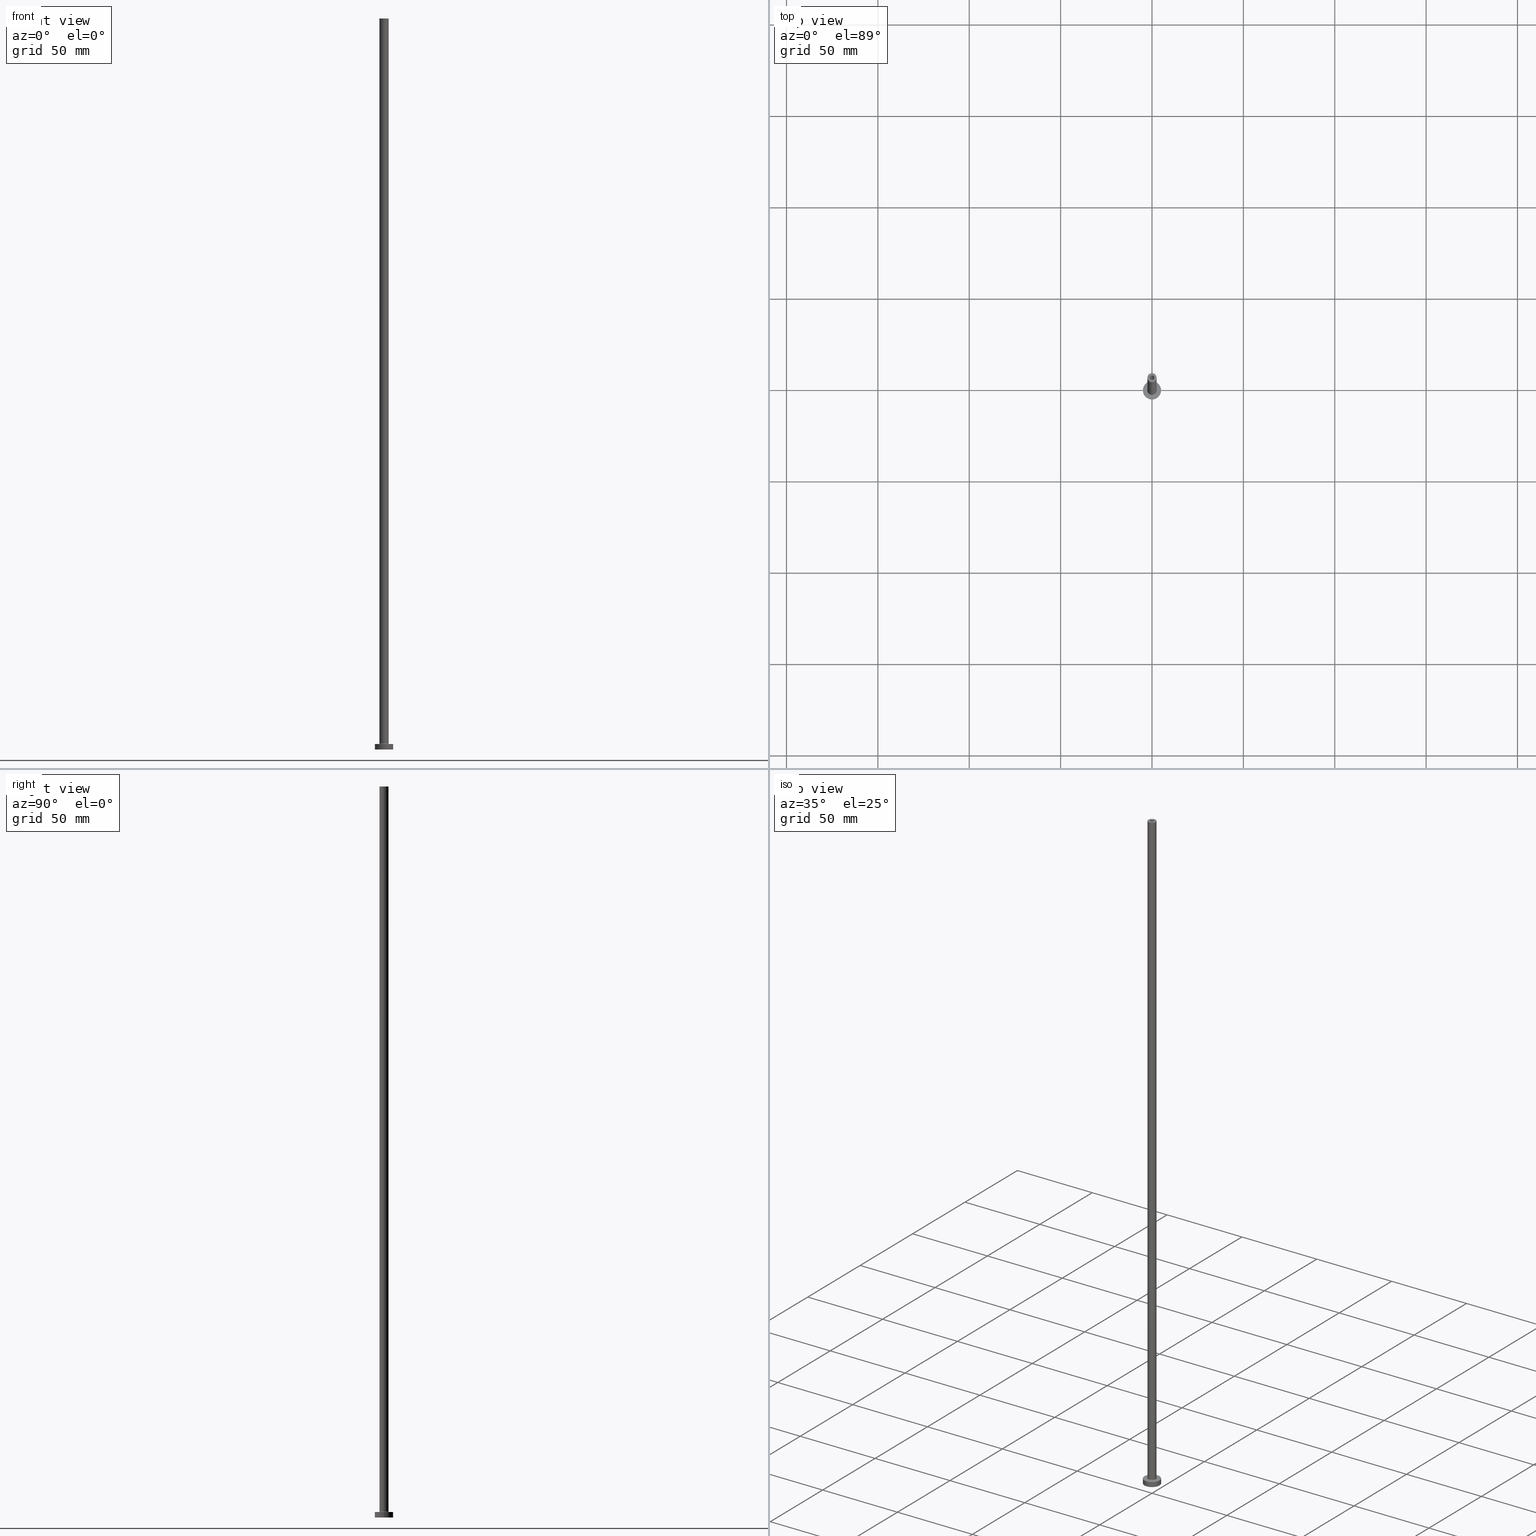
[diagram: canonical four-view strip — front | top / right | iso, engineering-drawing reading convention]
A machine part, canonical four-view strip (front | top / right | iso — engineering-drawing reading convention). The complete STEP part file that produces these views, byte-faithful:
ISO-10303-21;
HEADER;
FILE_DESCRIPTION (( 'STEP AP203' ),
    '1' );
FILE_NAME ('7e1b.STEP',
    '2023-02-13T18:03:59',
    ( '' ),
    ( '' ),
    'SwSTEP 2.0',
    'SolidWorks 2019',
    '' );
FILE_SCHEMA (( 'CONFIG_CONTROL_DESIGN' ));
ENDSEC;

DATA;
#1 = AXIS2_PLACEMENT_3D ( 'NONE', #91, #68, #455 ) ;
#2 = DIRECTION ( 'NONE',  ( 1.000000000000000000, 0.000000000000000000, 0.000000000000000000 ) ) ;
#3 = CALENDAR_DATE ( 2023, 13, 2 ) ;
#4 = VERTEX_POINT ( 'NONE', #315 ) ;
#5 = ADVANCED_FACE ( 'NONE', ( #217 ), #76, .F. ) ;
#6 = CALENDAR_DATE ( 2023, 13, 2 ) ;
#7 = ORIENTED_EDGE ( 'NONE', *, *, #426, .F. ) ;
#8 = CARTESIAN_POINT ( 'NONE',  ( 0.000000000000000000, 0.000000000000000000, 368.9597979746446299 ) ) ;
#9 = CARTESIAN_POINT ( 'NONE',  ( 0.000000000000000000, 0.000000000000000000, 400.0000000000000000 ) ) ;
#10 = CARTESIAN_POINT ( 'NONE',  ( -2.500000000000000000, 0.000000000000000000, 400.0000000000000000 ) ) ;
#11 = CALENDAR_DATE ( 2023, 13, 2 ) ;
#12 = CC_DESIGN_PERSON_AND_ORGANIZATION_ASSIGNMENT ( #152, #289, ( #97 ) ) ;
#13 = CARTESIAN_POINT ( 'NONE',  ( 2.500000000000000000, 3.061616997868383141E-16, 400.0000000000000000 ) ) ;
#14 = CALENDAR_DATE ( 2023, 13, 2 ) ;
#15 = DIRECTION ( 'NONE',  ( -1.000000000000000000, 0.000000000000000000, 0.000000000000000000 ) ) ;
#16 = LOCAL_TIME ( 19, 3, 59.00000000000000000, #188 ) ;
#17 = TOROIDAL_SURFACE ( 'NONE', #88, 2.799999999999999822, 0.2999999999999999889 ) ;
#18 = DATE_AND_TIME ( #443, #285 ) ;
#19 = CARTESIAN_POINT ( 'NONE',  ( 1.250000000000000000, 1.530808498934191571E-16, 365.0000000000000000 ) ) ;
#20 = EDGE_CURVE ( 'NONE', #379, #375, #21, .T. ) ;
#21 = CIRCLE ( 'NONE', #280, 5.000000000000000000 ) ;
#22 = CARTESIAN_POINT ( 'NONE',  ( 0.000000000000000000, 0.000000000000000000, 365.0000000000000000 ) ) ;
#23 = ORIENTED_EDGE ( 'NONE', *, *, #226, .T. ) ;
#24 = CYLINDRICAL_SURFACE ( 'NONE', #1, 1.250000000000000000 ) ;
#25 = ORIENTED_EDGE ( 'NONE', *, *, #350, .F. ) ;
#26 = VECTOR ( 'NONE', #292, 1000.000000000000000 ) ;
#27 = DIRECTION ( 'NONE',  ( 1.000000000000000000, 0.000000000000000000, -0.000000000000000000 ) ) ;
#28 = ORIENTED_EDGE ( 'NONE', *, *, #215, .T. ) ;
#29 = EDGE_CURVE ( 'NONE', #142, #174, #332, .T. ) ;
#30 = DIRECTION ( 'NONE',  ( 1.000000000000000000, 0.000000000000000000, 0.000000000000000000 ) ) ;
#31 = ORIENTED_EDGE ( 'NONE', *, *, #432, .T. ) ;
#32 = DIRECTION ( 'NONE',  ( 1.000000000000000000, 0.000000000000000000, 0.000000000000000000 ) ) ;
#33 = ORIENTED_EDGE ( 'NONE', *, *, #410, .F. ) ;
#34 = DIRECTION ( 'NONE',  ( -0.000000000000000000, -0.000000000000000000, -1.000000000000000000 ) ) ;
#35 = CARTESIAN_POINT ( 'NONE',  ( 0.000000000000000000, 0.000000000000000000, 0.000000000000000000 ) ) ;
#36 = EDGE_CURVE ( 'NONE', #375, #379, #389, .T. ) ;
#37 = ORIENTED_EDGE ( 'NONE', *, *, #41, .F. ) ;
#38 = CARTESIAN_POINT ( 'NONE',  ( 0.000000000000000000, 0.000000000000000000, 3.300000000000025135 ) ) ;
#39 = EDGE_LOOP ( 'NONE', ( #422, #386, #282, #412 ) ) ;
#40 = PERSON_AND_ORGANIZATION ( #262, #86 ) ;
#41 = EDGE_CURVE ( 'NONE', #264, #316, #178, .T. ) ;
#42 = DIRECTION ( 'NONE',  ( 1.224646799147353207E-16, 1.000000000000000000, -0.000000000000000000 ) ) ;
#43 = CLOSED_SHELL ( 'NONE', ( #71, #84, #5, #447, #358, #165, #297, #336, #54, #344, #244, #219, #291, #373 ) ) ;
#44 =( LENGTH_UNIT ( ) NAMED_UNIT ( * ) SI_UNIT ( .MILLI., .METRE. ) );
#45 = CYLINDRICAL_SURFACE ( 'NONE', #74, 5.000000000000000000 ) ;
#46 = APPROVAL_STATUS ( 'not_yet_approved' ) ;
#47 = VECTOR ( 'NONE', #307, 1000.000000000000000 ) ;
#48 = DIRECTION ( 'NONE',  ( 0.000000000000000000, 0.000000000000000000, 1.000000000000000000 ) ) ;
#49 = EDGE_CURVE ( 'NONE', #96, #420, #154, .T. ) ;
#50 = DIRECTION ( 'NONE',  ( 0.000000000000000000, 0.000000000000000000, 1.000000000000000000 ) ) ;
#51 = CARTESIAN_POINT ( 'NONE',  ( 1.399999999999999911, 1.714505518806294391E-16, 368.9597979746446299 ) ) ;
#52 = DIRECTION ( 'NONE',  ( 0.000000000000000000, 0.000000000000000000, -1.000000000000000000 ) ) ;
#53 = APPROVAL_ROLE ( '' ) ;
#54 = ADVANCED_FACE ( 'NONE', ( #284 ), #434, .T. ) ;
#55 = CARTESIAN_POINT ( 'NONE',  ( 0.000000000000000000, 0.000000000000000000, 0.000000000000000000 ) ) ;
#56 = AXIS2_PLACEMENT_3D ( 'NONE', #22, #98, #416 ) ;
#57 = FACE_BOUND ( 'NONE', #342, .T. ) ;
#58 = ORIENTED_EDGE ( 'NONE', *, *, #426, .T. ) ;
#59 = AXIS2_PLACEMENT_3D ( 'NONE', #113, #251, #249 ) ;
#60 = PLANE ( 'NONE',  #138 ) ;
#61 = ORIENTED_EDGE ( 'NONE', *, *, #118, .F. ) ;
#62 = CARTESIAN_POINT ( 'NONE',  ( 0.000000000000000000, 0.000000000000000000, 400.0000000000000000 ) ) ;
#63 = ORIENTED_EDGE ( 'NONE', *, *, #380, .F. ) ;
#64 = APPROVAL_PERSON_ORGANIZATION ( #82, #204, #79 ) ;
#65 = EDGE_CURVE ( 'NONE', #301, #276, #365, .T. ) ;
#66 = LOCAL_TIME ( 19, 3, 59.00000000000000000, #313 ) ;
#67 = CARTESIAN_POINT ( 'NONE',  ( 1.399999999999999911, 1.714505518806294391E-16, 0.000000000000000000 ) ) ;
#68 = DIRECTION ( 'NONE',  ( 0.000000000000000000, 0.000000000000000000, -1.000000000000000000 ) ) ;
#69 = EDGE_LOOP ( 'NONE', ( #203, #391, #348, #147 ) ) ;
#70 = APPLICATION_PROTOCOL_DEFINITION ( 'international standard', 'config_control_design', 1994, #360 ) ;
#71 = ADVANCED_FACE ( 'NONE', ( #158 ), #83, .F. ) ;
#72 = DIRECTION ( 'NONE',  ( -0.000000000000000000, -0.000000000000000000, -1.000000000000000000 ) ) ;
#73 = AXIS2_PLACEMENT_3D ( 'NONE', #191, #34, #311 ) ;
#74 = AXIS2_PLACEMENT_3D ( 'NONE', #293, #199, #15 ) ;
#75 = ORIENTED_EDGE ( 'NONE', *, *, #180, .T. ) ;
#76 = TOROIDAL_SURFACE ( 'NONE', #290, 2.799999999999999822, 0.2999999999999999889 ) ;
#77 = ORIENTED_EDGE ( 'NONE', *, *, #36, .T. ) ;
#78 = CARTESIAN_POINT ( 'NONE',  ( 0.000000000000000000, 0.000000000000000000, 400.0000000000000000 ) ) ;
#79 = APPROVAL_ROLE ( '' ) ;
#80 = EDGE_LOOP ( 'NONE', ( #58, #384, #340, #141 ) ) ;
#81 = DIRECTION ( 'NONE',  ( 1.000000000000000000, 0.000000000000000000, 0.000000000000000000 ) ) ;
#82 = PERSON_AND_ORGANIZATION ( #262, #86 ) ;
#83 = CYLINDRICAL_SURFACE ( 'NONE', #405, 1.250000000000000000 ) ;
#84 = ADVANCED_FACE ( 'NONE', ( #364 ), #222, .F. ) ;
#85 = CARTESIAN_POINT ( 'NONE',  ( 0.000000000000000000, 0.000000000000000000, 0.000000000000000000 ) ) ;
#86 = ORGANIZATION ( 'NEUR�EN�', 'NEUR�EN�', '' ) ;
#87 = CARTESIAN_POINT ( 'NONE',  ( -1.399999999999999911, 0.000000000000000000, 365.0000000000000000 ) ) ;
#88 = AXIS2_PLACEMENT_3D ( 'NONE', #122, #361, #438 ) ;
#89 = CARTESIAN_POINT ( 'NONE',  ( -1.250000000000000000, 0.000000000000000000, 365.0000000000000000 ) ) ;
#90 = CARTESIAN_POINT ( 'NONE',  ( 1.250000000000000000, 1.530808498934191571E-16, 400.0000000000000000 ) ) ;
#91 = CARTESIAN_POINT ( 'NONE',  ( 0.000000000000000000, 0.000000000000000000, 400.0000000000000000 ) ) ;
#92 = VECTOR ( 'NONE', #125, 1000.000000000000000 ) ;
#93 = PERSON_AND_ORGANIZATION_ROLE ( 'classification_officer' ) ;
#94 = PLANE ( 'NONE',  #115 ) ;
#95 = CARTESIAN_POINT ( 'NONE',  ( 0.000000000000000000, 0.000000000000000000, 3.000000000000000000 ) ) ;
#96 = VERTEX_POINT ( 'NONE', #189 ) ;
#97 = PRODUCT_DEFINITION ( 'NEZN�M�', '', #200, #402 ) ;
#98 = DIRECTION ( 'NONE',  ( 0.000000000000000000, 0.000000000000000000, 1.000000000000000000 ) ) ;
#99 = EDGE_LOOP ( 'NONE', ( #134, #61 ) ) ;
#100 = CIRCLE ( 'NONE', #149, 1.399999999999999911 ) ;
#101 = DIRECTION ( 'NONE',  ( 0.000000000000000000, 0.000000000000000000, 1.000000000000000000 ) ) ;
#102 = VERTEX_POINT ( 'NONE', #89 ) ;
#103 = CC_DESIGN_DATE_AND_TIME_ASSIGNMENT ( #354, #250, ( #97 ) ) ;
#104 = MECHANICAL_CONTEXT ( 'NONE', #153, 'mechanical' ) ;
#105 = ORIENTED_EDGE ( 'NONE', *, *, #380, .T. ) ;
#106 = DIRECTION ( 'NONE',  ( -0.000000000000000000, -0.000000000000000000, -1.000000000000000000 ) ) ;
#107 = CIRCLE ( 'NONE', #246, 5.000000000000000000 ) ;
#108 = VERTEX_POINT ( 'NONE', #87 ) ;
#109 = AXIS2_PLACEMENT_3D ( 'NONE', #144, #186, #278 ) ;
#110 = ORIENTED_EDGE ( 'NONE', *, *, #432, .F. ) ;
#111 = EDGE_CURVE ( 'NONE', #274, #312, #176, .T. ) ;
#112 = DIRECTION ( 'NONE',  ( 1.000000000000000000, 0.000000000000000000, 0.000000000000000000 ) ) ;
#113 = CARTESIAN_POINT ( 'NONE',  ( 0.000000000000000000, 0.000000000000000000, 0.000000000000000000 ) ) ;
#114 = APPROVAL_STATUS ( 'not_yet_approved' ) ;
#115 = AXIS2_PLACEMENT_3D ( 'NONE', #261, #101, #341 ) ;
#116 = DIRECTION ( 'NONE',  ( 0.000000000000000000, 0.000000000000000000, 1.000000000000000000 ) ) ;
#117 = DIRECTION ( 'NONE',  ( 0.000000000000000000, 0.000000000000000000, 1.000000000000000000 ) ) ;
#118 = EDGE_CURVE ( 'NONE', #276, #301, #435, .T. ) ;
#119 = DIRECTION ( 'NONE',  ( 1.000000000000000000, 0.000000000000000000, 0.000000000000000000 ) ) ;
#120 = CYLINDRICAL_SURFACE ( 'NONE', #73, 2.500000000000000000 ) ;
#121 = CARTESIAN_POINT ( 'NONE',  ( -1.250000000000000000, 0.000000000000000000, 400.0000000000000000 ) ) ;
#122 = CARTESIAN_POINT ( 'NONE',  ( 0.000000000000000000, 0.000000000000000000, 3.300000000000025135 ) ) ;
#123 = AXIS2_PLACEMENT_3D ( 'NONE', #8, #403, #157 ) ;
#124 = APPROVAL_DATE_TIME ( #439, #241 ) ;
#125 = DIRECTION ( 'NONE',  ( 0.000000000000000000, 0.000000000000000000, -1.000000000000000000 ) ) ;
#126 = DIRECTION ( 'NONE',  ( 1.000000000000000000, 0.000000000000000000, 0.000000000000000000 ) ) ;
#127 = FACE_BOUND ( 'NONE', #382, .T. ) ;
#128 = ORIENTED_EDGE ( 'NONE', *, *, #111, .F. ) ;
#129 = AXIS2_PLACEMENT_3D ( 'NONE', #196, #52, #396 ) ;
#130 = EDGE_CURVE ( 'NONE', #240, #142, #444, .T. ) ;
#131 = DIRECTION ( 'NONE',  ( 1.000000000000000000, 0.000000000000000000, 0.000000000000000000 ) ) ;
#132 = ORIENTED_EDGE ( 'NONE', *, *, #324, .F. ) ;
#133 = CARTESIAN_POINT ( 'NONE',  ( 5.000000000000000000, 6.123233995736766282E-16, 0.000000000000000000 ) ) ;
#134 = ORIENTED_EDGE ( 'NONE', *, *, #65, .F. ) ;
#135 = DIRECTION ( 'NONE',  ( 0.000000000000000000, 0.000000000000000000, 1.000000000000000000 ) ) ;
#136 = ORIENTED_EDGE ( 'NONE', *, *, #226, .F. ) ;
#137 = CC_DESIGN_PERSON_AND_ORGANIZATION_ASSIGNMENT ( #433, #383, ( #175 ) ) ;
#138 = AXIS2_PLACEMENT_3D ( 'NONE', #167, #207, #27 ) ;
#139 = DIRECTION ( 'NONE',  ( -0.000000000000000000, -0.000000000000000000, -1.000000000000000000 ) ) ;
#140 = ORIENTED_EDGE ( 'NONE', *, *, #20, .F. ) ;
#141 = ORIENTED_EDGE ( 'NONE', *, *, #143, .F. ) ;
#142 = VERTEX_POINT ( 'NONE', #252 ) ;
#143 = EDGE_CURVE ( 'NONE', #108, #301, #228, .T. ) ;
#144 = CARTESIAN_POINT ( 'NONE',  ( 2.799999999999999822, 0.000000000000000000, 3.300000000000025135 ) ) ;
#145 = DIRECTION ( 'NONE',  ( 1.000000000000000000, 0.000000000000000000, 0.000000000000000000 ) ) ;
#146 = VERTEX_POINT ( 'NONE', #10 ) ;
#147 = ORIENTED_EDGE ( 'NONE', *, *, #421, .F. ) ;
#148 =( NAMED_UNIT ( * ) PLANE_ANGLE_UNIT ( ) SI_UNIT ( $, .RADIAN. ) );
#149 = AXIS2_PLACEMENT_3D ( 'NONE', #359, #117, #430 ) ;
#150 = VECTOR ( 'NONE', #265, 1000.000000000000000 ) ;
#151 = CARTESIAN_POINT ( 'NONE',  ( 0.000000000000000000, 0.000000000000000000, 3.000000000000000000 ) ) ;
#152 = PERSON_AND_ORGANIZATION ( #262, #86 ) ;
#153 = APPLICATION_CONTEXT ( 'configuration controlled 3d designs of mechanical parts and assemblies' ) ;
#154 = CIRCLE ( 'NONE', #413, 0.2999999999999999334 ) ;
#155 = CARTESIAN_POINT ( 'NONE',  ( 2.799999999999999822, 0.000000000000000000, 3.000000000000012434 ) ) ;
#156 = PERSON_AND_ORGANIZATION ( #262, #86 ) ;
#157 = DIRECTION ( 'NONE',  ( -1.000000000000000000, 0.000000000000000000, 0.000000000000000000 ) ) ;
#158 = FACE_OUTER_BOUND ( 'NONE', #208, .T. ) ;
#159 = PRODUCT_RELATED_PRODUCT_CATEGORY ( 'detail', '', ( #175 ) ) ;
#160 = PERSON_AND_ORGANIZATION ( #262, #86 ) ;
#161 = CARTESIAN_POINT ( 'NONE',  ( 0.000000000000000000, 0.000000000000000000, 400.0000000000000000 ) ) ;
#162 = DATE_AND_TIME ( #11, #258 ) ;
#163 = DIRECTION ( 'NONE',  ( 0.000000000000000000, 0.000000000000000000, 1.000000000000000000 ) ) ;
#164 = EDGE_LOOP ( 'NONE', ( #428, #63, #172, #77 ) ) ;
#165 = ADVANCED_FACE ( 'NONE', ( #288 ), #45, .T. ) ;
#166 = CC_DESIGN_APPROVAL ( #204, ( #97 ) ) ;
#167 = CARTESIAN_POINT ( 'NONE',  ( 0.000000000000000000, 0.000000000000000000, 3.000000000000000000 ) ) ;
#168 = ORIENTED_EDGE ( 'NONE', *, *, #421, .T. ) ;
#169 = VECTOR ( 'NONE', #193, 1000.000000000000000 ) ;
#170 = DIRECTION ( 'NONE',  ( 0.000000000000000000, 0.000000000000000000, 1.000000000000000000 ) ) ;
#171 = DIRECTION ( 'NONE',  ( -0.000000000000000000, -0.000000000000000000, -1.000000000000000000 ) ) ;
#172 = ORIENTED_EDGE ( 'NONE', *, *, #410, .T. ) ;
#173 = PLANE ( 'NONE',  #387 ) ;
#174 = VERTEX_POINT ( 'NONE', #155 ) ;
#175 = PRODUCT ( '7e1b', '7e1b', '', ( #104 ) ) ;
#176 = CIRCLE ( 'NONE', #457, 5.000000000000000000 ) ;
#177 = DIRECTION ( 'NONE',  ( -1.000000000000000000, 0.000000000000000000, 0.000000000000000000 ) ) ;
#178 = CIRCLE ( 'NONE', #370, 1.250000000000000000 ) ;
#179 = ORIENTED_EDGE ( 'NONE', *, *, #187, .F. ) ;
#180 = EDGE_CURVE ( 'NONE', #316, #248, #436, .T. ) ;
#181 = EDGE_LOOP ( 'NONE', ( #310, #28 ) ) ;
#182 = AXIS2_PLACEMENT_3D ( 'NONE', #9, #221, #112 ) ;
#183 = AXIS2_PLACEMENT_3D ( 'NONE', #309, #163, #32 ) ;
#184 = DIRECTION ( 'NONE',  ( 0.000000000000000000, 0.000000000000000000, 1.000000000000000000 ) ) ;
#185 = CARTESIAN_POINT ( 'NONE',  ( 0.000000000000000000, 0.000000000000000000, 3.300000000000025135 ) ) ;
#186 = DIRECTION ( 'NONE',  ( 0.000000000000000000, -1.000000000000000000, 0.000000000000000000 ) ) ;
#187 = EDGE_CURVE ( 'NONE', #96, #142, #317, .T. ) ;
#188 = COORDINATED_UNIVERSAL_TIME_OFFSET ( 1, 0, .AHEAD. ) ;
#189 = CARTESIAN_POINT ( 'NONE',  ( -2.500000000000000000, 0.000000000000000000, 3.300000000000025135 ) ) ;
#190 = APPROVAL_PERSON_ORGANIZATION ( #160, #241, #53 ) ;
#191 = CARTESIAN_POINT ( 'NONE',  ( 0.000000000000000000, 0.000000000000000000, 400.0000000000000000 ) ) ;
#192 = VECTOR ( 'NONE', #225, 1000.000000000000000 ) ;
#193 = DIRECTION ( 'NONE',  ( -0.000000000000000000, -0.000000000000000000, -1.000000000000000000 ) ) ;
#194 = APPROVAL_DATE_TIME ( #18, #275 ) ;
#195 = AXIS2_PLACEMENT_3D ( 'NONE', #243, #72, #177 ) ;
#196 = CARTESIAN_POINT ( 'NONE',  ( 0.000000000000000000, 0.000000000000000000, 368.9597979746446299 ) ) ;
#197 = ADVANCED_BREP_SHAPE_REPRESENTATION ( '7e1b', ( #216, #303 ), #351 ) ;
#198 = CC_DESIGN_PERSON_AND_ORGANIZATION_ASSIGNMENT ( #408, #229, ( #200 ) ) ;
#199 = DIRECTION ( 'NONE',  ( -0.000000000000000000, -0.000000000000000000, -1.000000000000000000 ) ) ;
#200 = PRODUCT_DEFINITION_FORMATION_WITH_SPECIFIED_SOURCE ( 'LIBOVOLN�', '', #175, .NOT_KNOWN. ) ;
#201 = FACE_OUTER_BOUND ( 'NONE', #214, .T. ) ;
#202 = DIRECTION ( 'NONE',  ( 0.000000000000000000, 0.000000000000000000, 1.000000000000000000 ) ) ;
#203 = ORIENTED_EDGE ( 'NONE', *, *, #180, .F. ) ;
#204 = APPROVAL ( #46, 'NEUR�EN�' ) ;
#205 = CARTESIAN_POINT ( 'NONE',  ( -1.399999999999999911, 0.000000000000000000, 0.000000000000000000 ) ) ;
#206 = ORIENTED_EDGE ( 'NONE', *, *, #283, .F. ) ;
#207 = DIRECTION ( 'NONE',  ( 0.000000000000000000, 0.000000000000000000, 1.000000000000000000 ) ) ;
#208 = EDGE_LOOP ( 'NONE', ( #454, #75, #206, #279 ) ) ;
#209 = FACE_OUTER_BOUND ( 'NONE', #212, .T. ) ;
#210 = ORIENTED_EDGE ( 'NONE', *, *, #306, .F. ) ;
#211 = DIRECTION ( 'NONE',  ( 1.000000000000000000, 0.000000000000000000, 0.000000000000000000 ) ) ;
#212 = EDGE_LOOP ( 'NONE', ( #458, #140 ) ) ;
#213 = ORIENTED_EDGE ( 'NONE', *, *, #130, .F. ) ;
#214 = EDGE_LOOP ( 'NONE', ( #459, #110, #268, #266 ) ) ;
#215 = EDGE_CURVE ( 'NONE', #420, #174, #377, .T. ) ;
#216 = MANIFOLD_SOLID_BREP ( 'Odebrat vysunut�m4', #43 ) ;
#217 = FACE_OUTER_BOUND ( 'NONE', #308, .T. ) ;
#218 = EDGE_LOOP ( 'NONE', ( #213, #25, #23, #415 ) ) ;
#219 = ADVANCED_FACE ( 'NONE', ( #254 ), #298, .F. ) ;
#220 = LINE ( 'NONE', #256, #192 ) ;
#221 = DIRECTION ( 'NONE',  ( 0.000000000000000000, 0.000000000000000000, 1.000000000000000000 ) ) ;
#222 = CYLINDRICAL_SURFACE ( 'NONE', #123, 1.399999999999999911 ) ;
#223 = CC_DESIGN_APPROVAL ( #241, ( #385 ) ) ;
#224 = FACE_OUTER_BOUND ( 'NONE', #272, .T. ) ;
#225 = DIRECTION ( 'NONE',  ( -0.000000000000000000, -0.000000000000000000, -1.000000000000000000 ) ) ;
#226 = EDGE_CURVE ( 'NONE', #146, #96, #220, .T. ) ;
#227 = DIRECTION ( 'NONE',  ( -0.000000000000000000, -0.000000000000000000, -1.000000000000000000 ) ) ;
#228 = LINE ( 'NONE', #399, #26 ) ;
#229 = PERSON_AND_ORGANIZATION_ROLE ( 'design_supplier' ) ;
#230 = CIRCLE ( 'NONE', #294, 2.799999999999999822 ) ;
#231 = FACE_OUTER_BOUND ( 'NONE', #452, .T. ) ;
#232 = CIRCLE ( 'NONE', #409, 2.500000000000000000 ) ;
#233 = PERSON_AND_ORGANIZATION ( #262, #86 ) ;
#234 = CARTESIAN_POINT ( 'NONE',  ( 0.000000000000000000, 0.000000000000000000, 400.0000000000000000 ) ) ;
#235 = ORIENTED_EDGE ( 'NONE', *, *, #111, .T. ) ;
#236 = COORDINATED_UNIVERSAL_TIME_OFFSET ( 1, 0, .AHEAD. ) ;
#237 = LINE ( 'NONE', #374, #47 ) ;
#238 = ORIENTED_EDGE ( 'NONE', *, *, #29, .F. ) ;
#239 = CARTESIAN_POINT ( 'NONE',  ( -1.250000000000000000, 0.000000000000000000, 400.0000000000000000 ) ) ;
#240 = VERTEX_POINT ( 'NONE', #367 ) ;
#241 = APPROVAL ( #329, 'NEUR�EN�' ) ;
#242 = DIRECTION ( 'NONE',  ( -1.000000000000000000, 0.000000000000000000, 0.000000000000000000 ) ) ;
#243 = CARTESIAN_POINT ( 'NONE',  ( 0.000000000000000000, 0.000000000000000000, 400.0000000000000000 ) ) ;
#244 = ADVANCED_FACE ( 'NONE', ( #201 ), #17, .F. ) ;
#245 = UNCERTAINTY_MEASURE_WITH_UNIT (LENGTH_MEASURE( 1.000000000000000082E-05 ), #44, 'distance_accuracy_value', 'NONE');
#246 = AXIS2_PLACEMENT_3D ( 'NONE', #368, #170, #211 ) ;
#247 = ORIENTED_EDGE ( 'NONE', *, *, #283, .T. ) ;
#248 = VERTEX_POINT ( 'NONE', #19 ) ;
#249 = DIRECTION ( 'NONE',  ( 1.000000000000000000, 0.000000000000000000, 0.000000000000000000 ) ) ;
#250 = DATE_TIME_ROLE ( 'creation_date' ) ;
#251 = DIRECTION ( 'NONE',  ( 0.000000000000000000, 0.000000000000000000, 1.000000000000000000 ) ) ;
#252 = CARTESIAN_POINT ( 'NONE',  ( 2.500000000000000000, 3.061616997868383141E-16, 3.300000000000025135 ) ) ;
#253 = DIRECTION ( 'NONE',  ( 0.000000000000000000, 0.000000000000000000, 1.000000000000000000 ) ) ;
#254 = FACE_OUTER_BOUND ( 'NONE', #39, .T. ) ;
#255 = DIRECTION ( 'NONE',  ( 0.000000000000000000, 0.000000000000000000, 1.000000000000000000 ) ) ;
#256 = CARTESIAN_POINT ( 'NONE',  ( -2.500000000000000000, 0.000000000000000000, 400.0000000000000000 ) ) ;
#257 = EDGE_CURVE ( 'NONE', #4, #276, #357, .T. ) ;
#258 = LOCAL_TIME ( 19, 3, 59.00000000000000000, #295 ) ;
#259 = DIRECTION ( 'NONE',  ( -1.000000000000000000, 0.000000000000000000, 0.000000000000000000 ) ) ;
#260 = DIRECTION ( 'NONE',  ( 1.000000000000000000, 0.000000000000000000, 0.000000000000000000 ) ) ;
#261 = CARTESIAN_POINT ( 'NONE',  ( 0.000000000000000000, 0.000000000000000000, 0.000000000000000000 ) ) ;
#262 = PERSON ( 'NEUR�EN�', 'NEUR�EN�', 'NEUR�EN�', ('NEUR�EN�'), ('NEUR�EN�'), ('NEUR�EN�') ) ;
#263 = CARTESIAN_POINT ( 'NONE',  ( -5.000000000000000000, 0.000000000000000000, 0.000000000000000000 ) ) ;
#264 = VERTEX_POINT ( 'NONE', #121 ) ;
#265 = DIRECTION ( 'NONE',  ( 0.000000000000000000, 0.000000000000000000, -1.000000000000000000 ) ) ;
#266 = ORIENTED_EDGE ( 'NONE', *, *, #215, .F. ) ;
#267 = LINE ( 'NONE', #239, #150 ) ;
#268 = ORIENTED_EDGE ( 'NONE', *, *, #29, .T. ) ;
#269 = CC_DESIGN_PERSON_AND_ORGANIZATION_ASSIGNMENT ( #233, #445, ( #200 ) ) ;
#270 = APPROVAL_PERSON_ORGANIZATION ( #40, #275, #395 ) ;
#271 = CARTESIAN_POINT ( 'NONE',  ( -5.000000000000000000, 0.000000000000000000, 3.000000000000000000 ) ) ;
#272 = EDGE_LOOP ( 'NONE', ( #210, #372, #31, #136 ) ) ;
#273 = AXIS2_PLACEMENT_3D ( 'NONE', #234, #446, #126 ) ;
#274 = VERTEX_POINT ( 'NONE', #328 ) ;
#275 = APPROVAL ( #114, 'NEUR�EN�' ) ;
#276 = VERTEX_POINT ( 'NONE', #67 ) ;
#277 = CIRCLE ( 'NONE', #362, 1.250000000000000000 ) ;
#278 = DIRECTION ( 'NONE',  ( 0.000000000000000000, 0.000000000000000000, -1.000000000000000000 ) ) ;
#279 = ORIENTED_EDGE ( 'NONE', *, *, #331, .F. ) ;
#280 = AXIS2_PLACEMENT_3D ( 'NONE', #35, #461, #2 ) ;
#281 = CARTESIAN_POINT ( 'NONE',  ( -2.799999999999999822, 3.429011037612589276E-16, 3.000000000000012434 ) ) ;
#282 = ORIENTED_EDGE ( 'NONE', *, *, #143, .T. ) ;
#283 = EDGE_CURVE ( 'NONE', #102, #248, #401, .T. ) ;
#284 = FACE_OUTER_BOUND ( 'NONE', #218, .T. ) ;
#285 = LOCAL_TIME ( 19, 3, 59.00000000000000000, #400 ) ;
#286 = CARTESIAN_POINT ( 'NONE',  ( 5.000000000000000000, 6.123233995736766282E-16, 3.000000000000000000 ) ) ;
#287 = AXIS2_PLACEMENT_3D ( 'NONE', #371, #135, #343 ) ;
#288 = FACE_OUTER_BOUND ( 'NONE', #164, .T. ) ;
#289 = PERSON_AND_ORGANIZATION_ROLE ( 'creator' ) ;
#290 = AXIS2_PLACEMENT_3D ( 'NONE', #38, #347, #431 ) ;
#291 = ADVANCED_FACE ( 'NONE', ( #57, #338 ), #453, .F. ) ;
#292 = DIRECTION ( 'NONE',  ( 0.000000000000000000, 0.000000000000000000, -1.000000000000000000 ) ) ;
#293 = CARTESIAN_POINT ( 'NONE',  ( 0.000000000000000000, 0.000000000000000000, 3.000000000000000000 ) ) ;
#294 = AXIS2_PLACEMENT_3D ( 'NONE', #95, #451, #131 ) ;
#295 = COORDINATED_UNIVERSAL_TIME_OFFSET ( 1, 0, .AHEAD. ) ;
#296 = DIRECTION ( 'NONE',  ( 0.000000000000000000, 0.000000000000000000, -1.000000000000000000 ) ) ;
#297 = ADVANCED_FACE ( 'NONE', ( #381, #300 ), #60, .T. ) ;
#298 = CYLINDRICAL_SURFACE ( 'NONE', #129, 1.399999999999999911 ) ;
#299 = SHAPE_DEFINITION_REPRESENTATION ( #423, #197 ) ;
#300 = FACE_OUTER_BOUND ( 'NONE', #352, .T. ) ;
#301 = VERTEX_POINT ( 'NONE', #205 ) ;
#302 = DATE_TIME_ROLE ( 'classification_date' ) ;
#303 = AXIS2_PLACEMENT_3D ( 'NONE', #85, #253, #392 ) ;
#304 = CARTESIAN_POINT ( 'NONE',  ( 1.250000000000000000, 1.530808498934191571E-16, 400.0000000000000000 ) ) ;
#305 = AXIS2_PLACEMENT_3D ( 'NONE', #414, #171, #242 ) ;
#306 = EDGE_CURVE ( 'NONE', #240, #146, #442, .T. ) ;
#307 = DIRECTION ( 'NONE',  ( -0.000000000000000000, -0.000000000000000000, -1.000000000000000000 ) ) ;
#308 = EDGE_LOOP ( 'NONE', ( #179, #424, #319, #238 ) ) ;
#309 = CARTESIAN_POINT ( 'NONE',  ( 0.000000000000000000, 0.000000000000000000, 365.0000000000000000 ) ) ;
#310 = ORIENTED_EDGE ( 'NONE', *, *, #390, .T. ) ;
#311 = DIRECTION ( 'NONE',  ( -1.000000000000000000, 0.000000000000000000, 0.000000000000000000 ) ) ;
#312 = VERTEX_POINT ( 'NONE', #271 ) ;
#313 = COORDINATED_UNIVERSAL_TIME_OFFSET ( 1, 0, .AHEAD. ) ;
#314 = CARTESIAN_POINT ( 'NONE',  ( 0.000000000000000000, 0.000000000000000000, 0.000000000000000000 ) ) ;
#315 = CARTESIAN_POINT ( 'NONE',  ( 1.399999999999999911, 1.714505518806294391E-16, 365.0000000000000000 ) ) ;
#316 = VERTEX_POINT ( 'NONE', #304 ) ;
#317 = CIRCLE ( 'NONE', #353, 2.500000000000000000 ) ;
#318 = CC_DESIGN_DATE_AND_TIME_ASSIGNMENT ( #162, #302, ( #385 ) ) ;
#319 = ORIENTED_EDGE ( 'NONE', *, *, #390, .F. ) ;
#320 = DIRECTION ( 'NONE',  ( -1.000000000000000000, 1.224646799147353207E-16, 0.000000000000000000 ) ) ;
#321 = DATE_AND_TIME ( #6, #16 ) ;
#322 = DIRECTION ( 'NONE',  ( 1.000000000000000000, 0.000000000000000000, 0.000000000000000000 ) ) ;
#323 = VECTOR ( 'NONE', #139, 1000.000000000000000 ) ;
#324 = EDGE_CURVE ( 'NONE', #4, #108, #330, .T. ) ;
#325 = LINE ( 'NONE', #286, #323 ) ;
#326 = DIRECTION ( 'NONE',  ( -0.000000000000000000, -0.000000000000000000, -1.000000000000000000 ) ) ;
#327 = SECURITY_CLASSIFICATION_LEVEL ( 'unclassified' ) ;
#328 = CARTESIAN_POINT ( 'NONE',  ( 5.000000000000000000, 6.123233995736766282E-16, 3.000000000000000000 ) ) ;
#329 = APPROVAL_STATUS ( 'not_yet_approved' ) ;
#330 = CIRCLE ( 'NONE', #56, 1.399999999999999911 ) ;
#331 = EDGE_CURVE ( 'NONE', #264, #102, #267, .T. ) ;
#332 = CIRCLE ( 'NONE', #109, 0.2999999999999999334 ) ;
#333 = CYLINDRICAL_SURFACE ( 'NONE', #305, 5.000000000000000000 ) ;
#334 = ORIENTED_EDGE ( 'NONE', *, *, #306, .T. ) ;
#335 = CARTESIAN_POINT ( 'NONE',  ( 0.000000000000000000, 0.000000000000000000, 400.0000000000000000 ) ) ;
#336 = ADVANCED_FACE ( 'NONE', ( #411, #209 ), #94, .F. ) ;
#337 = CC_DESIGN_APPROVAL ( #275, ( #200 ) ) ;
#338 = FACE_OUTER_BOUND ( 'NONE', #369, .T. ) ;
#339 = VECTOR ( 'NONE', #397, 1000.000000000000000 ) ;
#340 = ORIENTED_EDGE ( 'NONE', *, *, #118, .T. ) ;
#341 = DIRECTION ( 'NONE',  ( 1.000000000000000000, 0.000000000000000000, -0.000000000000000000 ) ) ;
#342 = EDGE_LOOP ( 'NONE', ( #247, #168 ) ) ;
#343 = DIRECTION ( 'NONE',  ( 1.000000000000000000, 0.000000000000000000, -0.000000000000000000 ) ) ;
#344 = ADVANCED_FACE ( 'NONE', ( #127, #231 ), #173, .T. ) ;
#345 = ORIENTED_EDGE ( 'NONE', *, *, #20, .T. ) ;
#346 = APPROVAL_DATE_TIME ( #321, #204 ) ;
#347 = DIRECTION ( 'NONE',  ( 0.000000000000000000, 0.000000000000000000, 1.000000000000000000 ) ) ;
#348 = ORIENTED_EDGE ( 'NONE', *, *, #331, .T. ) ;
#349 = ORIENTED_EDGE ( 'NONE', *, *, #350, .T. ) ;
#350 = EDGE_CURVE ( 'NONE', #146, #240, #232, .T. ) ;
#351 =( GEOMETRIC_REPRESENTATION_CONTEXT ( 3 ) GLOBAL_UNCERTAINTY_ASSIGNED_CONTEXT ( ( #245 ) ) GLOBAL_UNIT_ASSIGNED_CONTEXT ( ( #44, #148, #356 ) ) REPRESENTATION_CONTEXT ( 'NONE', 'WORKASPACE' ) );
#352 = EDGE_LOOP ( 'NONE', ( #105, #235 ) ) ;
#353 = AXIS2_PLACEMENT_3D ( 'NONE', #440, #48, #119 ) ;
#354 = DATE_AND_TIME ( #3, #66 ) ;
#355 = CARTESIAN_POINT ( 'NONE',  ( -2.799999999999999822, 3.429011037612588783E-16, 3.300000000000025135 ) ) ;
#356 =( NAMED_UNIT ( * ) SI_UNIT ( $, .STERADIAN. ) SOLID_ANGLE_UNIT ( ) );
#357 = LINE ( 'NONE', #51, #339 ) ;
#358 = ADVANCED_FACE ( 'NONE', ( #419 ), #333, .T. ) ;
#359 = CARTESIAN_POINT ( 'NONE',  ( 0.000000000000000000, 0.000000000000000000, 365.0000000000000000 ) ) ;
#360 = APPLICATION_CONTEXT ( 'configuration controlled 3d designs of mechanical parts and assemblies' ) ;
#361 = DIRECTION ( 'NONE',  ( 0.000000000000000000, 0.000000000000000000, 1.000000000000000000 ) ) ;
#362 = AXIS2_PLACEMENT_3D ( 'NONE', #437, #255, #363 ) ;
#363 = DIRECTION ( 'NONE',  ( 1.000000000000000000, 0.000000000000000000, 0.000000000000000000 ) ) ;
#364 = FACE_OUTER_BOUND ( 'NONE', #80, .T. ) ;
#365 = CIRCLE ( 'NONE', #429, 1.399999999999999911 ) ;
#366 = DIRECTION ( 'NONE',  ( 1.000000000000000000, 0.000000000000000000, 0.000000000000000000 ) ) ;
#367 = CARTESIAN_POINT ( 'NONE',  ( 2.500000000000000000, 3.061616997868383141E-16, 400.0000000000000000 ) ) ;
#368 = CARTESIAN_POINT ( 'NONE',  ( 0.000000000000000000, 0.000000000000000000, 3.000000000000000000 ) ) ;
#369 = EDGE_LOOP ( 'NONE', ( #7, #132 ) ) ;
#370 = AXIS2_PLACEMENT_3D ( 'NONE', #78, #184, #394 ) ;
#371 = CARTESIAN_POINT ( 'NONE',  ( 0.000000000000000000, 0.000000000000000000, 365.0000000000000000 ) ) ;
#372 = ORIENTED_EDGE ( 'NONE', *, *, #130, .T. ) ;
#373 = ADVANCED_FACE ( 'NONE', ( #448 ), #24, .F. ) ;
#374 = CARTESIAN_POINT ( 'NONE',  ( -5.000000000000000000, 0.000000000000000000, 3.000000000000000000 ) ) ;
#375 = VERTEX_POINT ( 'NONE', #263 ) ;
#376 = CIRCLE ( 'NONE', #393, 2.500000000000000000 ) ;
#377 = CIRCLE ( 'NONE', #450, 2.799999999999999822 ) ;
#378 = DIRECTION ( 'NONE',  ( 0.000000000000000000, 0.000000000000000000, 1.000000000000000000 ) ) ;
#379 = VERTEX_POINT ( 'NONE', #133 ) ;
#380 = EDGE_CURVE ( 'NONE', #312, #274, #107, .T. ) ;
#381 = FACE_BOUND ( 'NONE', #181, .T. ) ;
#382 = EDGE_LOOP ( 'NONE', ( #37, #456 ) ) ;
#383 = PERSON_AND_ORGANIZATION_ROLE ( 'design_owner' ) ;
#384 = ORIENTED_EDGE ( 'NONE', *, *, #257, .T. ) ;
#385 = SECURITY_CLASSIFICATION ( '', '', #327 ) ;
#386 = ORIENTED_EDGE ( 'NONE', *, *, #324, .T. ) ;
#387 = AXIS2_PLACEMENT_3D ( 'NONE', #62, #378, #407 ) ;
#388 = ORIENTED_EDGE ( 'NONE', *, *, #441, .T. ) ;
#389 = CIRCLE ( 'NONE', #59, 5.000000000000000000 ) ;
#390 = EDGE_CURVE ( 'NONE', #174, #420, #230, .T. ) ;
#391 = ORIENTED_EDGE ( 'NONE', *, *, #460, .T. ) ;
#392 = DIRECTION ( 'NONE',  ( 1.000000000000000000, 0.000000000000000000, 0.000000000000000000 ) ) ;
#393 = AXIS2_PLACEMENT_3D ( 'NONE', #185, #50, #145 ) ;
#394 = DIRECTION ( 'NONE',  ( 1.000000000000000000, 0.000000000000000000, 0.000000000000000000 ) ) ;
#395 = APPROVAL_ROLE ( '' ) ;
#396 = DIRECTION ( 'NONE',  ( -1.000000000000000000, 0.000000000000000000, 0.000000000000000000 ) ) ;
#397 = DIRECTION ( 'NONE',  ( 0.000000000000000000, 0.000000000000000000, -1.000000000000000000 ) ) ;
#398 = APPLICATION_PROTOCOL_DEFINITION ( 'international standard', 'config_control_design', 1994, #153 ) ;
#399 = CARTESIAN_POINT ( 'NONE',  ( -1.399999999999999911, 0.000000000000000000, 368.9597979746446299 ) ) ;
#400 = COORDINATED_UNIVERSAL_TIME_OFFSET ( 1, 0, .AHEAD. ) ;
#401 = CIRCLE ( 'NONE', #183, 1.250000000000000000 ) ;
#402 = DESIGN_CONTEXT ( 'detailed design', #360, 'design' ) ;
#403 = DIRECTION ( 'NONE',  ( 0.000000000000000000, 0.000000000000000000, -1.000000000000000000 ) ) ;
#404 = CC_DESIGN_PERSON_AND_ORGANIZATION_ASSIGNMENT ( #156, #93, ( #385 ) ) ;
#405 = AXIS2_PLACEMENT_3D ( 'NONE', #161, #296, #259 ) ;
#406 = CARTESIAN_POINT ( 'NONE',  ( 0.000000000000000000, 0.000000000000000000, 3.000000000000000000 ) ) ;
#407 = DIRECTION ( 'NONE',  ( 1.000000000000000000, 0.000000000000000000, -0.000000000000000000 ) ) ;
#408 = PERSON_AND_ORGANIZATION ( #262, #86 ) ;
#409 = AXIS2_PLACEMENT_3D ( 'NONE', #335, #202, #30 ) ;
#410 = EDGE_CURVE ( 'NONE', #312, #375, #237, .T. ) ;
#411 = FACE_BOUND ( 'NONE', #99, .T. ) ;
#412 = ORIENTED_EDGE ( 'NONE', *, *, #65, .T. ) ;
#413 = AXIS2_PLACEMENT_3D ( 'NONE', #355, #42, #320 ) ;
#414 = CARTESIAN_POINT ( 'NONE',  ( 0.000000000000000000, 0.000000000000000000, 3.000000000000000000 ) ) ;
#415 = ORIENTED_EDGE ( 'NONE', *, *, #187, .T. ) ;
#416 = DIRECTION ( 'NONE',  ( 1.000000000000000000, 0.000000000000000000, 0.000000000000000000 ) ) ;
#417 = CIRCLE ( 'NONE', #182, 1.250000000000000000 ) ;
#418 = AXIS2_PLACEMENT_3D ( 'NONE', #55, #326, #260 ) ;
#419 = FACE_OUTER_BOUND ( 'NONE', #427, .T. ) ;
#420 = VERTEX_POINT ( 'NONE', #281 ) ;
#421 = EDGE_CURVE ( 'NONE', #248, #102, #277, .T. ) ;
#422 = ORIENTED_EDGE ( 'NONE', *, *, #257, .F. ) ;
#423 = PRODUCT_DEFINITION_SHAPE ( 'NONE', 'NONE',  #97 ) ;
#424 = ORIENTED_EDGE ( 'NONE', *, *, #49, .T. ) ;
#425 = LOCAL_TIME ( 19, 3, 59.00000000000000000, #236 ) ;
#426 = EDGE_CURVE ( 'NONE', #108, #4, #100, .T. ) ;
#427 = EDGE_LOOP ( 'NONE', ( #128, #388, #345, #33 ) ) ;
#428 = ORIENTED_EDGE ( 'NONE', *, *, #441, .F. ) ;
#429 = AXIS2_PLACEMENT_3D ( 'NONE', #314, #106, #81 ) ;
#430 = DIRECTION ( 'NONE',  ( 1.000000000000000000, 0.000000000000000000, 0.000000000000000000 ) ) ;
#431 = DIRECTION ( 'NONE',  ( 1.000000000000000000, 0.000000000000000000, 0.000000000000000000 ) ) ;
#432 = EDGE_CURVE ( 'NONE', #142, #96, #376, .T. ) ;
#433 = PERSON_AND_ORGANIZATION ( #262, #86 ) ;
#434 = CYLINDRICAL_SURFACE ( 'NONE', #195, 2.500000000000000000 ) ;
#435 = CIRCLE ( 'NONE', #418, 1.399999999999999911 ) ;
#436 = LINE ( 'NONE', #90, #92 ) ;
#437 = CARTESIAN_POINT ( 'NONE',  ( 0.000000000000000000, 0.000000000000000000, 365.0000000000000000 ) ) ;
#438 = DIRECTION ( 'NONE',  ( 1.000000000000000000, 0.000000000000000000, 0.000000000000000000 ) ) ;
#439 = DATE_AND_TIME ( #14, #425 ) ;
#440 = CARTESIAN_POINT ( 'NONE',  ( 0.000000000000000000, 0.000000000000000000, 3.300000000000025135 ) ) ;
#441 = EDGE_CURVE ( 'NONE', #274, #379, #325, .T. ) ;
#442 = CIRCLE ( 'NONE', #273, 2.500000000000000000 ) ;
#443 = CALENDAR_DATE ( 2023, 13, 2 ) ;
#444 = LINE ( 'NONE', #13, #169 ) ;
#445 = PERSON_AND_ORGANIZATION_ROLE ( 'creator' ) ;
#446 = DIRECTION ( 'NONE',  ( 0.000000000000000000, 0.000000000000000000, 1.000000000000000000 ) ) ;
#447 = ADVANCED_FACE ( 'NONE', ( #224 ), #120, .T. ) ;
#448 = FACE_OUTER_BOUND ( 'NONE', #69, .T. ) ;
#449 = CC_DESIGN_SECURITY_CLASSIFICATION ( #385, ( #200 ) ) ;
#450 = AXIS2_PLACEMENT_3D ( 'NONE', #406, #227, #366 ) ;
#451 = DIRECTION ( 'NONE',  ( -0.000000000000000000, -0.000000000000000000, -1.000000000000000000 ) ) ;
#452 = EDGE_LOOP ( 'NONE', ( #349, #334 ) ) ;
#453 = PLANE ( 'NONE',  #287 ) ;
#454 = ORIENTED_EDGE ( 'NONE', *, *, #41, .T. ) ;
#455 = DIRECTION ( 'NONE',  ( -1.000000000000000000, 0.000000000000000000, 0.000000000000000000 ) ) ;
#456 = ORIENTED_EDGE ( 'NONE', *, *, #460, .F. ) ;
#457 = AXIS2_PLACEMENT_3D ( 'NONE', #151, #116, #322 ) ;
#458 = ORIENTED_EDGE ( 'NONE', *, *, #36, .F. ) ;
#459 = ORIENTED_EDGE ( 'NONE', *, *, #49, .F. ) ;
#460 = EDGE_CURVE ( 'NONE', #316, #264, #417, .T. ) ;
#461 = DIRECTION ( 'NONE',  ( 0.000000000000000000, 0.000000000000000000, 1.000000000000000000 ) ) ;
ENDSEC;
END-ISO-10303-21;
